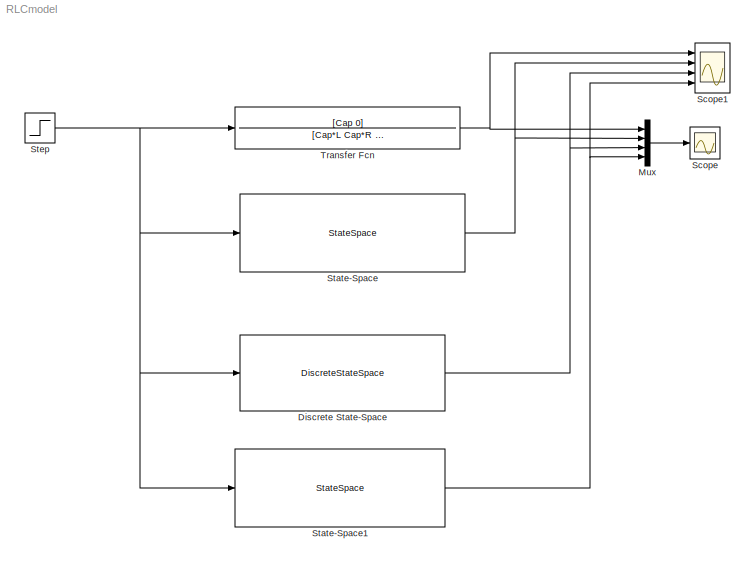
MODEL RLCmodel
KIND model
CONFIG InitFcn = initRLC
BLOCK [DiscreteStateSpace] Discrete State-Space
  A = Ad
  B = Bd
  C = Cd
  D = Dd
  SID = 2
  SampleTime = dT
BLOCK [Mux] Mux
  DisplayOption = bar
  Ports = [4, 1]
  SID = 3
BLOCK [Scope] Scope
  NumInputPorts = 1
  Ports = [1]
  SID = 4
  ScopeSpecificationString = Simulink.scopes.TimeScopeBlockCfg('CurrentConfiguration', extmgr.ConfigurationSet(extmgr.Configuration('Core','General UI',true),extmgr.Configuration('Core','Source UI',true),extmgr.Configuration('Sources','WiredSimulink',true,'DataLoggingVariableName','ScopeData1','DataLoggingSaveFormat','StructureWithTime','DataLoggingMaxPoints','500000','DataLoggingLimitDataPoints',true,'DataLoggingDecimation',...<+1771ch>
BLOCK [Scope] Scope1
  NumInputPorts = 4
  Ports = [4]
  SID = 5
  ScopeSpecificationString = Simulink.scopes.TimeScopeBlockCfg('CurrentConfiguration', extmgr.ConfigurationSet(extmgr.Configuration('Core','General UI',true),extmgr.Configuration('Core','Source UI',true),extmgr.Configuration('Sources','WiredSimulink',true,'DataLoggingSaveFormat','StructureWithTime','DataLoggingMaxPoints','500000','DataLoggingLimitDataPoints',true,'DataLoggingDecimation','1','DataLoggingDecimateData',true),ext...<+3773ch>
BLOCK [StateSpace] State-Space
  A = A
  B = B
  C = C
  D = D
  Ports = [1, 1]
  SID = 6
  X0 = 0
BLOCK [StateSpace] State-Space1
  A = [0 1;-1/(L*Cap) -R/L]
  B = [0 1]'
  C = [0 1/L]
  D = 0
  Ports = [1, 1]
  SID = 7
  X0 = 0
BLOCK [Step] Step
  SID = 8
  Time = 0.0001
BLOCK [TransferFcn] Transfer Fcn
  Denominator = [Cap*L Cap*R 1]
  Numerator = [Cap 0]
  SID = 9
NET Discrete State-Space:1 -> Mux:3, Scope1:3
LINE Mux:1 -> Scope:1
NET State-Space1:1 -> Mux:4, Scope1:4
NET State-Space:1 -> Mux:2, Scope1:2
NET Step:1 -> Discrete State-Space:1, State-Space1:1, State-Space:1, Transfer Fcn:1
NET Transfer Fcn:1 -> Mux:1, Scope1:1
note: NET lines group one-source signal fan-out (src -> all destinations, sorted); 1:1 wires keep LINE
